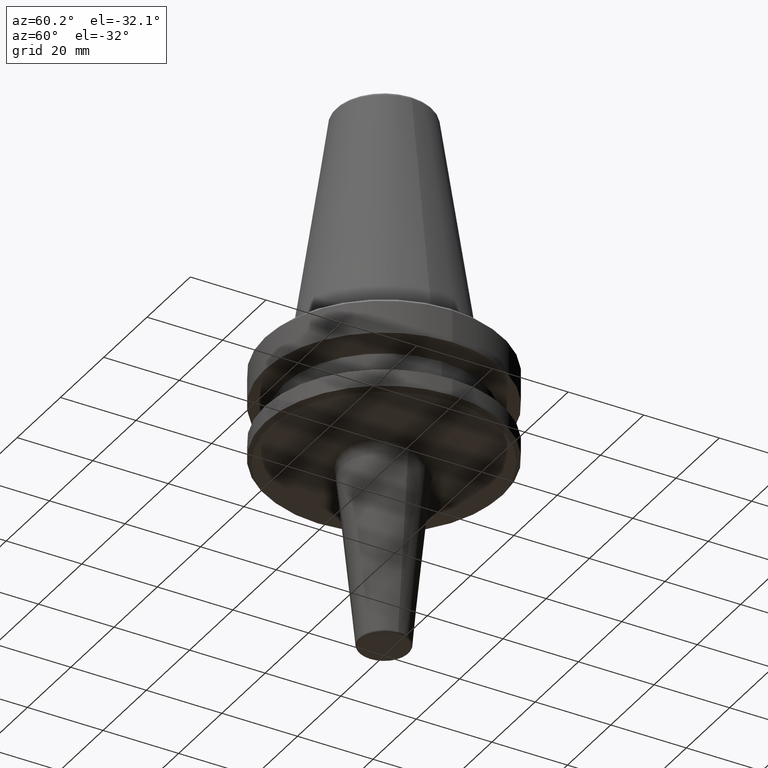
[diagram: clean part render]
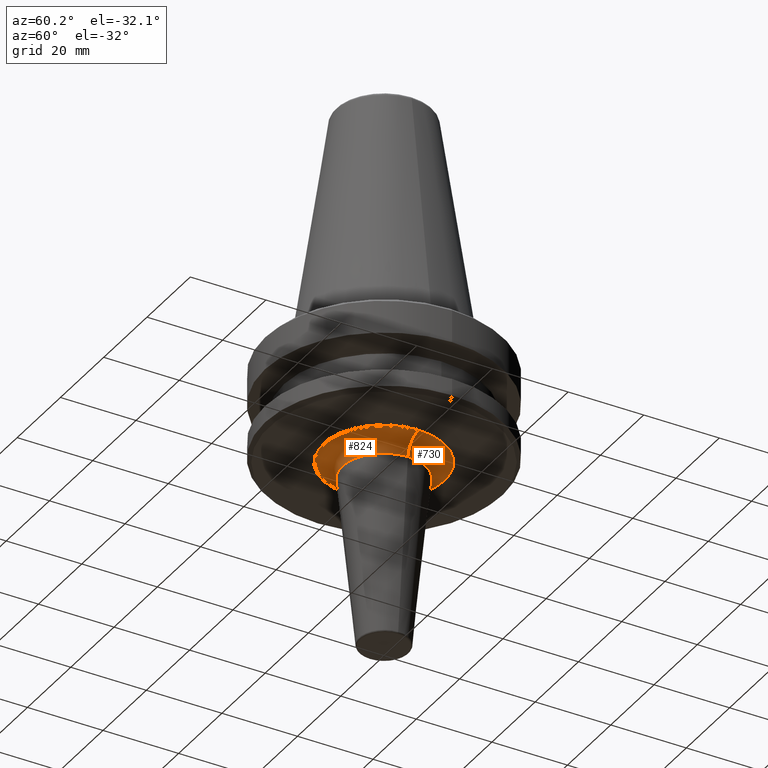
[diagram: same view with one multi-face feature highlighted, each face labeled with its STEP entity id]
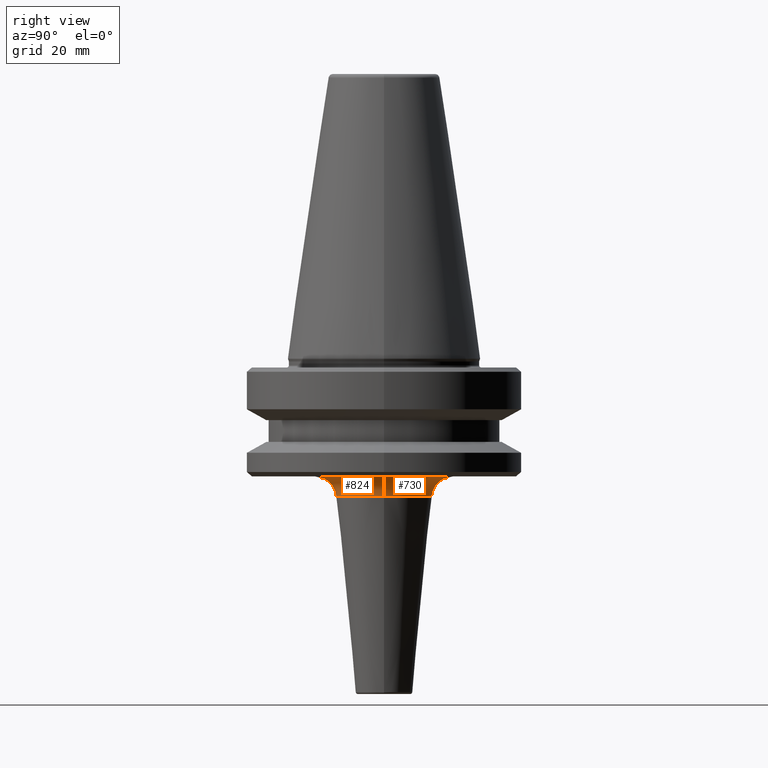
[diagram: same view with one multi-face feature highlighted, each face labeled with its STEP entity id]
A machine part, auxiliary view. The highlighted faces form ONE feature: a constant-radius fillet chain: 2 tangent blend faces with common blend radius 5 mm. The faces share edges in the B-rep.
A second angle (right view) of the same feature is appended — it is thin or edge-on in the first view.
Their STEP definitions:
[1] entity #824 (Torus):
#25 = VERTEX_POINT ( 'NONE', #150 ) ;
#37 = CARTESIAN_POINT ( 'NONE',  ( 0.0000000000000000000, 0.0000000000000000000, -97.40000000000807700 ) ) ;
#42 = ORIENTED_EDGE ( 'NONE', *, *, #153, .F. ) ;
#86 = ORIENTED_EDGE ( 'NONE', *, *, #407, .F. ) ;
#94 = VERTEX_POINT ( 'NONE', #929 ) ;
#120 = AXIS2_PLACEMENT_3D ( 'NONE', #953, #122, #994 ) ;
#122 = DIRECTION ( 'NONE',  ( 0.0000000000000000000, -1.000000000000000000, 0.0000000000000000000 ) ) ;
#129 = CIRCLE ( 'NONE', #365, 11.04975185951050100 ) ;
#150 = CARTESIAN_POINT ( 'NONE',  ( 16.02493781056045200, 0.0000000000000000000, -92.40000000000809200 ) ) ;
#153 = EDGE_CURVE ( 'NONE', #990, #25, #623, .T. ) ;
#187 = CIRCLE ( 'NONE', #120, 4.999999999999990200 ) ;
#218 = AXIS2_PLACEMENT_3D ( 'NONE', #360, #1054, #272 ) ;
#271 = DIRECTION ( 'NONE',  ( 1.000000000000000000, 0.0000000000000000000, 0.0000000000000000000 ) ) ;
#272 = DIRECTION ( 'NONE',  ( -1.000000000000000000, 1.224646799147353500E-016, 0.0000000000000000000 ) ) ;
#310 = TOROIDAL_SURFACE ( 'NONE', #648, 16.02493781056045200, 4.999999999999997300 ) ;
#331 = ORIENTED_EDGE ( 'NONE', *, *, #523, .T. ) ;
#358 = CARTESIAN_POINT ( 'NONE',  ( 0.0000000000000000000, 0.0000000000000000000, -96.90248140490307100 ) ) ;
#360 = CARTESIAN_POINT ( 'NONE',  ( -16.02493781056045200, 1.962488879623824800E-015, -97.40000000000807700 ) ) ;
#365 = AXIS2_PLACEMENT_3D ( 'NONE', #358, #835, #271 ) ;
#407 = EDGE_CURVE ( 'NONE', #25, #567, #187, .T. ) ;
#429 = DIRECTION ( 'NONE',  ( -0.0000000000000000000, -0.0000000000000000000, 1.000000000000000000 ) ) ;
#482 = DIRECTION ( 'NONE',  ( 1.000000000000000000, 0.0000000000000000000, 0.0000000000000000000 ) ) ;
#523 = EDGE_CURVE ( 'NONE', #990, #94, #584, .T. ) ;
#567 = VERTEX_POINT ( 'NONE', #688 ) ;
#584 = CIRCLE ( 'NONE', #218, 4.999999999999997300 ) ;
#615 = AXIS2_PLACEMENT_3D ( 'NONE', #635, #972, #482 ) ;
#623 = CIRCLE ( 'NONE', #615, 16.02493781056045200 ) ;
#635 = CARTESIAN_POINT ( 'NONE',  ( 0.0000000000000000000, 0.0000000000000000000, -92.40000000000809200 ) ) ;
#648 = AXIS2_PLACEMENT_3D ( 'NONE', #37, #429, #934 ) ;
#688 = CARTESIAN_POINT ( 'NONE',  ( 11.04975185951050100, 0.0000000000000000000, -96.90248140490307100 ) ) ;
#704 = ORIENTED_EDGE ( 'NONE', *, *, #816, .T. ) ;
#732 = FACE_OUTER_BOUND ( 'NONE', #736, .T. ) ;
#736 = EDGE_LOOP ( 'NONE', ( #42, #331, #704, #86 ) ) ;
#816 = EDGE_CURVE ( 'NONE', #94, #567, #129, .T. ) ;
#824 = ADVANCED_FACE ( 'NONE', ( #732 ), #310, .F. ) ;
#835 = DIRECTION ( 'NONE',  ( -0.0000000000000000000, -0.0000000000000000000, 1.000000000000000000 ) ) ;
#858 = CARTESIAN_POINT ( 'NONE',  ( -16.02493781056045200, 1.962488879623824800E-015, -92.40000000000809200 ) ) ;
#929 = CARTESIAN_POINT ( 'NONE',  ( -11.04975185951050100, 1.657846602118014900E-015, -96.90248140490307100 ) ) ;
#934 = DIRECTION ( 'NONE',  ( 1.000000000000000000, 0.0000000000000000000, 0.0000000000000000000 ) ) ;
#953 = CARTESIAN_POINT ( 'NONE',  ( 16.02493781056045200, 0.0000000000000000000, -97.40000000000807700 ) ) ;
#972 = DIRECTION ( 'NONE',  ( -0.0000000000000000000, -0.0000000000000000000, 1.000000000000000000 ) ) ;
#990 = VERTEX_POINT ( 'NONE', #858 ) ;
#994 = DIRECTION ( 'NONE',  ( 0.0000000000000000000, 0.0000000000000000000, -1.000000000000000000 ) ) ;
#1054 = DIRECTION ( 'NONE',  ( 1.224646799147353200E-016, 1.000000000000000000, 0.0000000000000000000 ) ) ;
[2] entity #730 (Torus):
#11 = CIRCLE ( 'NONE', #268, 11.04975185951050100 ) ;
#25 = VERTEX_POINT ( 'NONE', #150 ) ;
#71 = CARTESIAN_POINT ( 'NONE',  ( 0.0000000000000000000, 0.0000000000000000000, -97.40000000000807700 ) ) ;
#94 = VERTEX_POINT ( 'NONE', #929 ) ;
#120 = AXIS2_PLACEMENT_3D ( 'NONE', #953, #122, #994 ) ;
#122 = DIRECTION ( 'NONE',  ( 0.0000000000000000000, -1.000000000000000000, 0.0000000000000000000 ) ) ;
#150 = CARTESIAN_POINT ( 'NONE',  ( 16.02493781056045200, 0.0000000000000000000, -92.40000000000809200 ) ) ;
#187 = CIRCLE ( 'NONE', #120, 4.999999999999990200 ) ;
#198 = CARTESIAN_POINT ( 'NONE',  ( 0.0000000000000000000, 0.0000000000000000000, -92.40000000000809200 ) ) ;
#218 = AXIS2_PLACEMENT_3D ( 'NONE', #360, #1054, #272 ) ;
#257 = ORIENTED_EDGE ( 'NONE', *, *, #407, .T. ) ;
#263 = FACE_OUTER_BOUND ( 'NONE', #512, .T. ) ;
#268 = AXIS2_PLACEMENT_3D ( 'NONE', #449, #1040, #842 ) ;
#272 = DIRECTION ( 'NONE',  ( -1.000000000000000000, 1.224646799147353500E-016, 0.0000000000000000000 ) ) ;
#360 = CARTESIAN_POINT ( 'NONE',  ( -16.02493781056045200, 1.962488879623824800E-015, -97.40000000000807700 ) ) ;
#373 = ORIENTED_EDGE ( 'NONE', *, *, #679, .F. ) ;
#407 = EDGE_CURVE ( 'NONE', #25, #567, #187, .T. ) ;
#435 = DIRECTION ( 'NONE',  ( 1.000000000000000000, 0.0000000000000000000, 0.0000000000000000000 ) ) ;
#449 = CARTESIAN_POINT ( 'NONE',  ( 0.0000000000000000000, 0.0000000000000000000, -96.90248140490307100 ) ) ;
#470 = EDGE_CURVE ( 'NONE', #567, #94, #11, .T. ) ;
#512 = EDGE_LOOP ( 'NONE', ( #633, #373, #257, #849 ) ) ;
#513 = AXIS2_PLACEMENT_3D ( 'NONE', #71, #840, #435 ) ;
#522 = DIRECTION ( 'NONE',  ( -0.0000000000000000000, -0.0000000000000000000, 1.000000000000000000 ) ) ;
#523 = EDGE_CURVE ( 'NONE', #990, #94, #584, .T. ) ;
#567 = VERTEX_POINT ( 'NONE', #688 ) ;
#584 = CIRCLE ( 'NONE', #218, 4.999999999999997300 ) ;
#633 = ORIENTED_EDGE ( 'NONE', *, *, #523, .F. ) ;
#679 = EDGE_CURVE ( 'NONE', #25, #990, #980, .T. ) ;
#688 = CARTESIAN_POINT ( 'NONE',  ( 11.04975185951050100, 0.0000000000000000000, -96.90248140490307100 ) ) ;
#730 = ADVANCED_FACE ( 'NONE', ( #263 ), #891, .F. ) ;
#840 = DIRECTION ( 'NONE',  ( -0.0000000000000000000, -0.0000000000000000000, 1.000000000000000000 ) ) ;
#842 = DIRECTION ( 'NONE',  ( 1.000000000000000000, 0.0000000000000000000, 0.0000000000000000000 ) ) ;
#849 = ORIENTED_EDGE ( 'NONE', *, *, #470, .T. ) ;
#858 = CARTESIAN_POINT ( 'NONE',  ( -16.02493781056045200, 1.962488879623824800E-015, -92.40000000000809200 ) ) ;
#891 = TOROIDAL_SURFACE ( 'NONE', #513, 16.02493781056045200, 4.999999999999997300 ) ;
#929 = CARTESIAN_POINT ( 'NONE',  ( -11.04975185951050100, 1.657846602118014900E-015, -96.90248140490307100 ) ) ;
#953 = CARTESIAN_POINT ( 'NONE',  ( 16.02493781056045200, 0.0000000000000000000, -97.40000000000807700 ) ) ;
#978 = AXIS2_PLACEMENT_3D ( 'NONE', #198, #522, #1049 ) ;
#980 = CIRCLE ( 'NONE', #978, 16.02493781056045200 ) ;
#990 = VERTEX_POINT ( 'NONE', #858 ) ;
#994 = DIRECTION ( 'NONE',  ( 0.0000000000000000000, 0.0000000000000000000, -1.000000000000000000 ) ) ;
#1040 = DIRECTION ( 'NONE',  ( -0.0000000000000000000, -0.0000000000000000000, 1.000000000000000000 ) ) ;
#1049 = DIRECTION ( 'NONE',  ( 1.000000000000000000, 0.0000000000000000000, 0.0000000000000000000 ) ) ;
#1054 = DIRECTION ( 'NONE',  ( 1.224646799147353200E-016, 1.000000000000000000, 0.0000000000000000000 ) ) ;